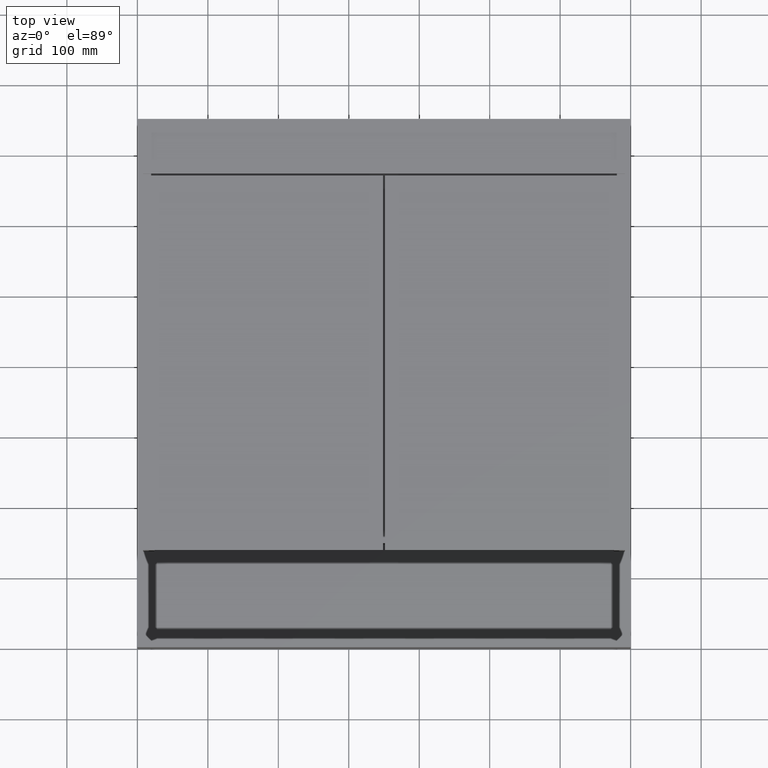
[diagram: clean part render]
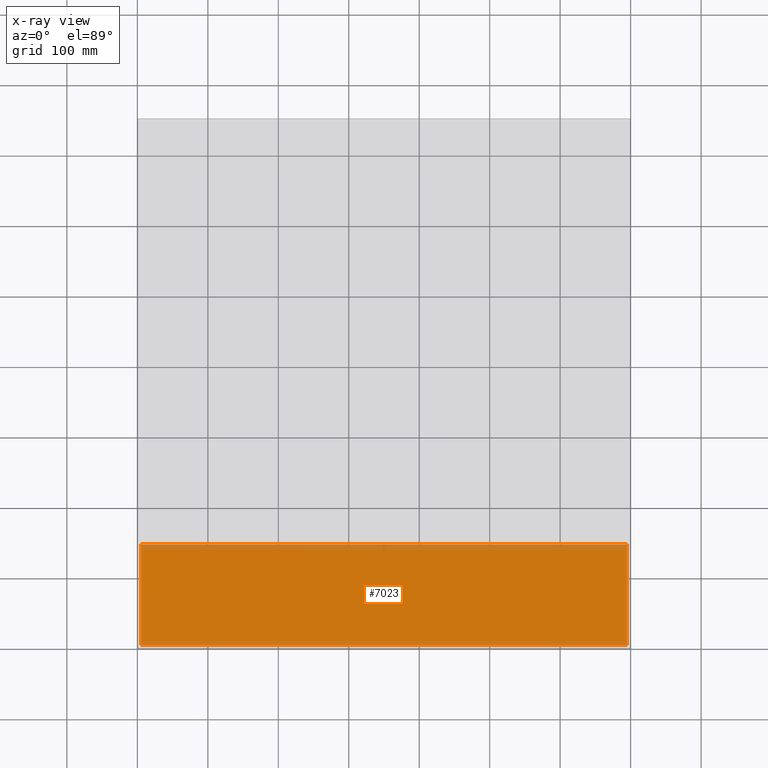
[diagram: x-ray — body ghosted, one internal face saturated and labeled with its STEP entity id]
A machine part, top view, then the same camera in x-ray: the body is ghosted and one INTERNAL B-rep face — a face not visible from any outside direction — is saturated and labeled: STEP entity #7023.
In plain terms, the highlighted planar face has unit normal (-0, 0, 1).
Its self-contained STEP definition (entity closure, byte-faithful):
#48 = LINE ( 'NONE', #3486, #9296 ) ;
#298 = LINE ( 'NONE', #3746, #8617 ) ;
#1196 = CARTESIAN_POINT ( 'NONE',  ( 5.000000000000004441, 5.000000000000004441, -124.9999999999999432 ) ) ;
#1398 = DIRECTION ( 'NONE',  ( 1.000000000000000000, 0.0000000000000000000, 1.206764157201257291E-16 ) ) ;
#1857 = ORIENTED_EDGE ( 'NONE', *, *, #7170, .T. ) ;
#2217 = EDGE_CURVE ( 'NONE', #11134, #9036, #298, .T. ) ;
#2255 = PLANE ( 'NONE',  #4605 ) ;
#2321 = VERTEX_POINT ( 'NONE', #3909 ) ;
#2533 = LINE ( 'NONE', #5968, #6303 ) ;
#2913 = EDGE_LOOP ( 'NONE', ( #6111, #5997, #1857, #5041 ) ) ;
#3291 = EDGE_CURVE ( 'NONE', #11134, #2321, #2533, .T. ) ;
#3486 = CARTESIAN_POINT ( 'NONE',  ( 5.000000000000004441, 5.000000000000004441, -124.9999999999999432 ) ) ;
#3746 = CARTESIAN_POINT ( 'NONE',  ( 5.000000000000004441, 148.0000000000001421, -124.9999999999999432 ) ) ;
#3909 = CARTESIAN_POINT ( 'NONE',  ( 695.0000000000000000, 5.000000000000004441, -124.9999999999998579 ) ) ;
#3930 = LINE ( 'NONE', #7374, #8252 ) ;
#4605 = AXIS2_PLACEMENT_3D ( 'NONE', #5690, #9114, #1398 ) ;
#5041 = ORIENTED_EDGE ( 'NONE', *, *, #11013, .F. ) ;
#5194 = CARTESIAN_POINT ( 'NONE',  ( 5.000000000000004441, 148.0000000000001421, -124.9999999999999432 ) ) ;
#5690 = CARTESIAN_POINT ( 'NONE',  ( 5.000000000000004441, 838.0463752531419459, -124.9999999999999432 ) ) ;
#5968 = CARTESIAN_POINT ( 'NONE',  ( 695.0000000000000000, 838.0463752531419459, -124.9999999999998579 ) ) ;
#5997 = ORIENTED_EDGE ( 'NONE', *, *, #3291, .T. ) ;
#6111 = ORIENTED_EDGE ( 'NONE', *, *, #2217, .F. ) ;
#6303 = VECTOR ( 'NONE', #9400, 1000.000000000000000 ) ;
#6929 = DIRECTION ( 'NONE',  ( -1.000000000000000000, -0.0000000000000000000, -1.206764157201257291E-16 ) ) ;
#7023 = ADVANCED_FACE ( 'NONE', ( #9970 ), #2255, .F. ) ;
#7170 = EDGE_CURVE ( 'NONE', #2321, #10538, #48, .T. ) ;
#7193 = DIRECTION ( 'NONE',  ( -1.000000000000000000, 0.0000000000000000000, -1.206764157201257291E-16 ) ) ;
#7374 = CARTESIAN_POINT ( 'NONE',  ( 5.000000000000004441, 838.0463752531419459, -124.9999999999999432 ) ) ;
#8252 = VECTOR ( 'NONE', #10810, 1000.000000000000000 ) ;
#8617 = VECTOR ( 'NONE', #7193, 1000.000000000000000 ) ;
#9036 = VERTEX_POINT ( 'NONE', #5194 ) ;
#9114 = DIRECTION ( 'NONE',  ( -1.206764157201257291E-16, 0.0000000000000000000, 1.000000000000000000 ) ) ;
#9296 = VECTOR ( 'NONE', #6929, 1000.000000000000000 ) ;
#9400 = DIRECTION ( 'NONE',  ( -0.0000000000000000000, -1.000000000000000000, -0.0000000000000000000 ) ) ;
#9970 = FACE_OUTER_BOUND ( 'NONE', #2913, .T. ) ;
#10538 = VERTEX_POINT ( 'NONE', #1196 ) ;
#10810 = DIRECTION ( 'NONE',  ( -0.0000000000000000000, -1.000000000000000000, -0.0000000000000000000 ) ) ;
#11013 = EDGE_CURVE ( 'NONE', #9036, #10538, #3930, .T. ) ;
#11039 = CARTESIAN_POINT ( 'NONE',  ( 695.0000000000000000, 148.0000000000003411, -124.9999999999998579 ) ) ;
#11134 = VERTEX_POINT ( 'NONE', #11039 ) ;